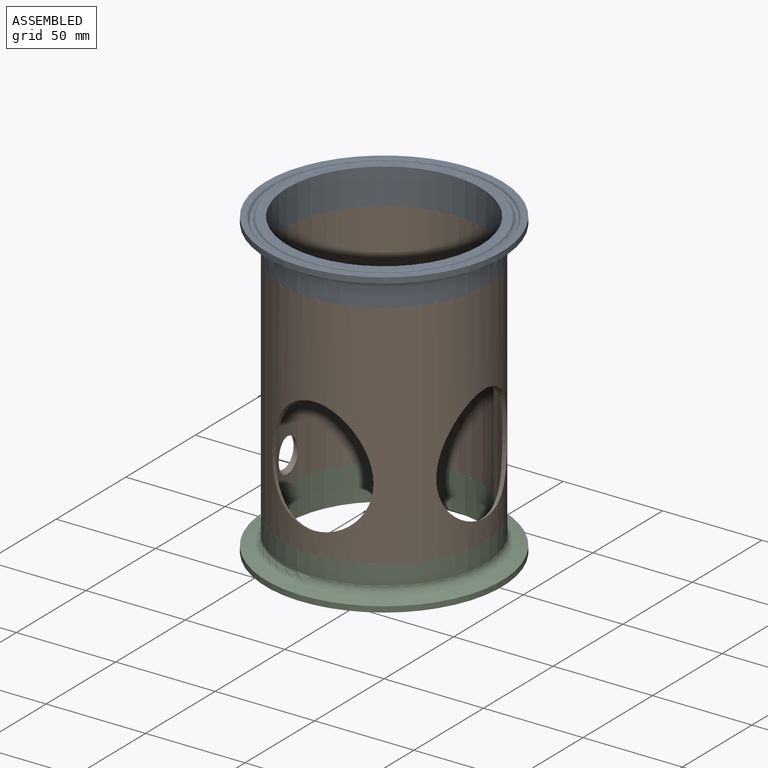
[diagram: assembled view]
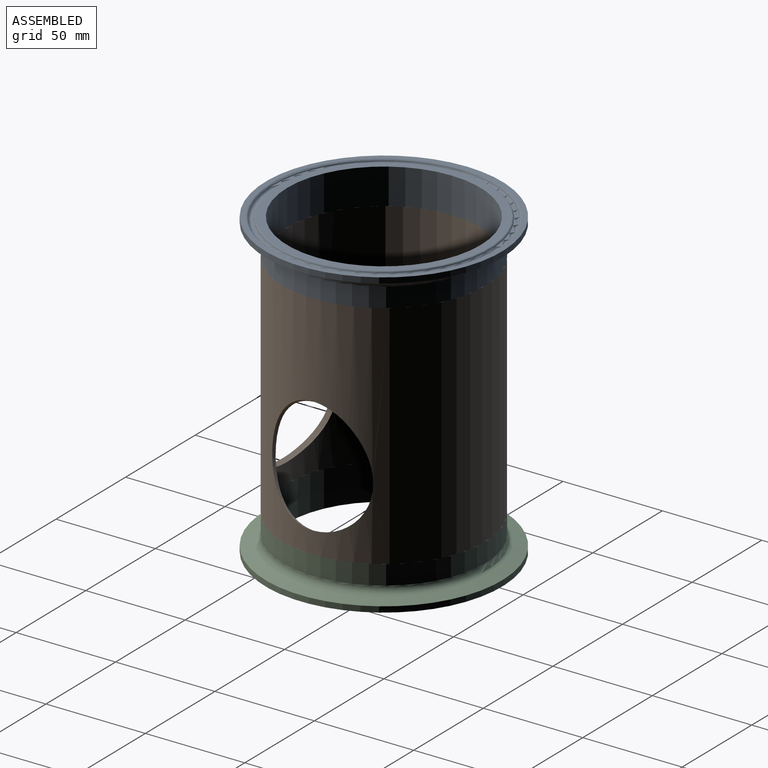
[diagram: assembled view, second angle]
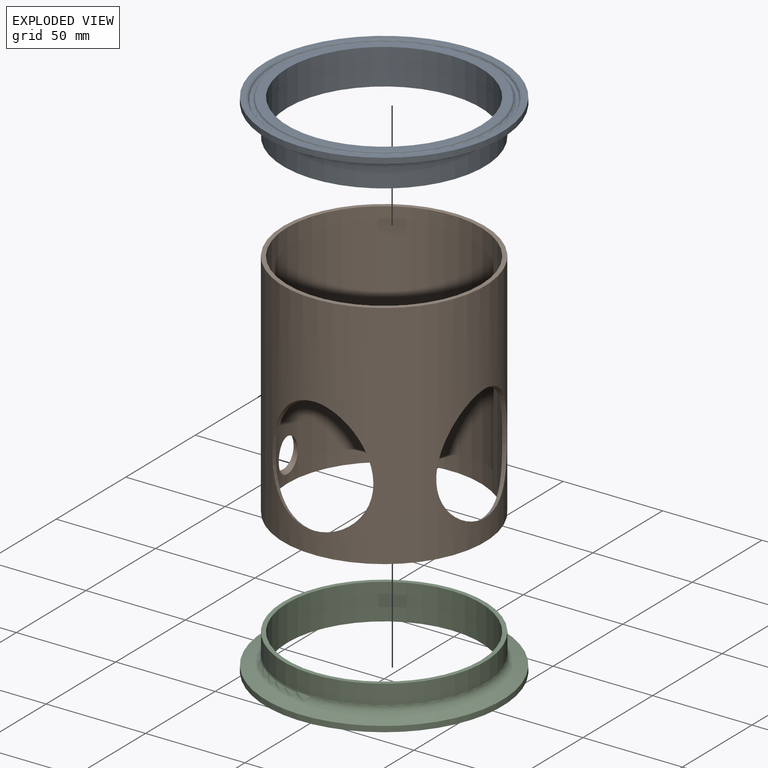
[diagram: exploded view]
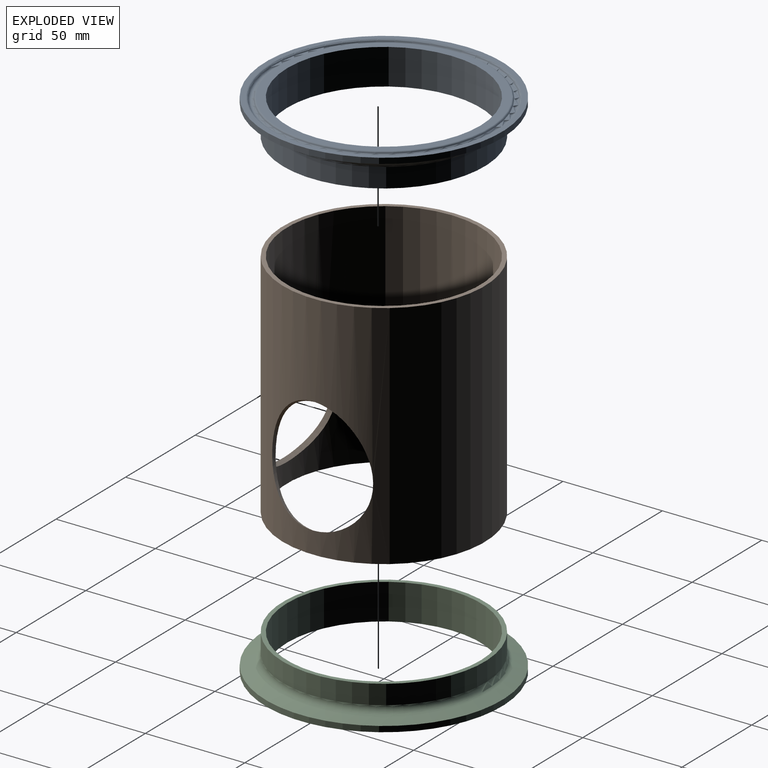
[diagram: exploded view, second angle]
ASSEMBLY  parts=3 mates=2
PART A: 13 faces, bbox 122.9x18x122.9 mm
  f0: cylinder r=50.8mm len=101.6mm, axis (0,-1,0), area 3121.5mm2, adj f4,f12
  f1: cylinder r=48.69mm len=97.38mm, axis (0,-1,0), area 5506.9mm2, adj f11,f12
  f2: cylinder r=59.46mm len=118.92mm, axis (0,-1,0), area 1062.8mm2, adj f3,f10
  f3: cone r=52.89mm half-angle=70deg, axis (0,-1,0), area 2468.6mm2, adj f2,f4
  f4: torus R=53.98mm, axis (0,-1,0), area 1256mm2, adj f0,f3
  f5: torus R=52.81mm, axis (0,-1,0), area 307.9mm2, adj f6,f11
  f6: cone r=53.7mm half-angle=23deg, axis (0,1,0), area 143.9mm2, adj f5,f7
  f7: torus R=54.8mm, axis (0,-1,0), area 961.3mm2, adj f6,f8
  f8: cone r=56.07mm half-angle=23deg, axis (0,-1,0), area 150.2mm2, adj f7,f9
  f9: torus R=56.79mm, axis (0,-1,0), area 326.2mm2, adj f8,f10
  f10: plane 118.92x118.92mm, normal (0,-1,0), area 975.3mm2, adj f2,f9
  f11: plane 105.62x105.62mm, normal (0,-1,0), area 1313.2mm2, adj f1,f5
  f12: plane 101.6x101.6mm, normal (0,1,0), area 658.9mm2, adj f0,f1
PART B: 7 faces, bbox 135.3x127x116.4 mm
  f0: cylinder r=25.4mm len=59.89mm, axis (0.87,0,-0.5), area 418.5mm2, adj f1,f2
  f1: cylinder r=48.69mm len=116.4mm, axis (0,0,-1), area 30577.7mm2, adj f0,f3,f4,f5,f6
  f2: cylinder r=50.8mm len=116.4mm, axis (0,0,-1), area 32133.9mm2, adj f0,f3,f4,f5,f6
  f3: plane 101.6x101.6mm, normal (0,0,1), area 658.9mm2, adj f1,f2
  f4: plane 101.6x101.6mm, normal (0,0,-1), area 658.9mm2, adj f1,f2
  f5: cylinder r=25.4mm len=59.89mm, axis (0,-0.87,-0.5), area 418.5mm2, adj f1,f2
  f6: cylinder r=6.86mm len=18.76mm, axis (-0.8,0,-0.6), area 114.3mm2, adj f1,f2
PART C: same geometry as A
PLACE A rot(axis=(0,0.71,-0.71),180deg) t=(0,0,152.4)mm
PLACE B rot(axis=(0,0,-1),180deg) t=(0,0,18)mm
PLACE C rot(axis=(0,0.71,0.71),180deg) t=(0,0,0)mm
MATE fastened B.f2 <-> A.f0  axis (0,0,1) through (0,0,134.4)mm
MATE fastened B.f2 <-> C.f0  axis (0,0,-1) through (0,0,18)mm
